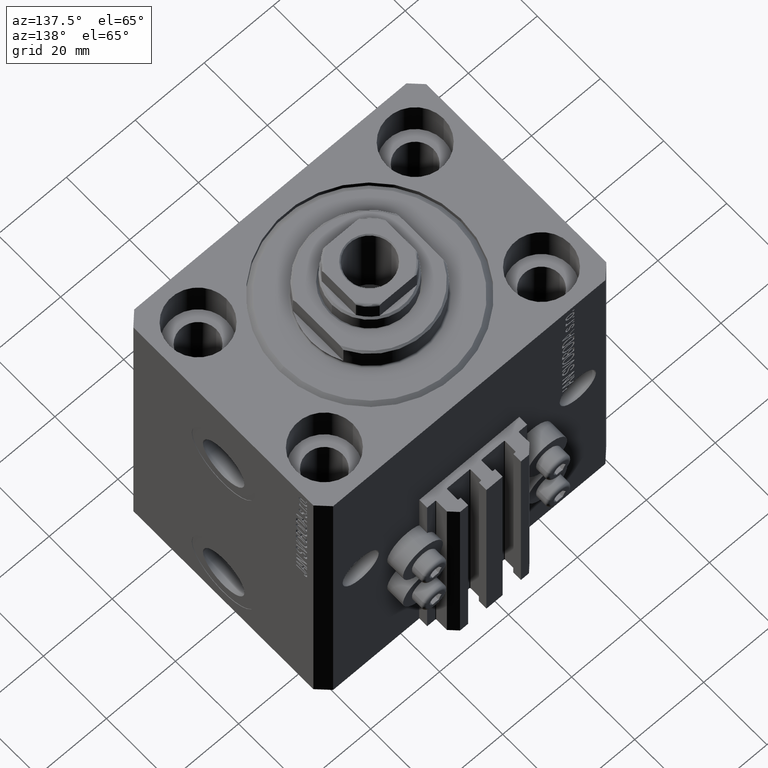
[diagram: clean part render]
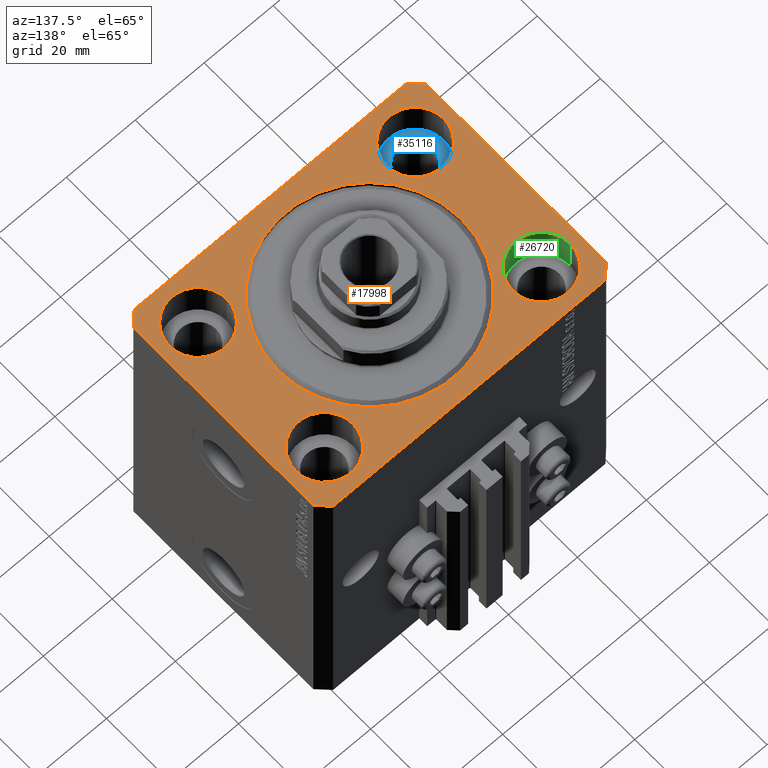
[diagram: same view with three faces highlighted in distinct colors, each labeled with its STEP entity id]
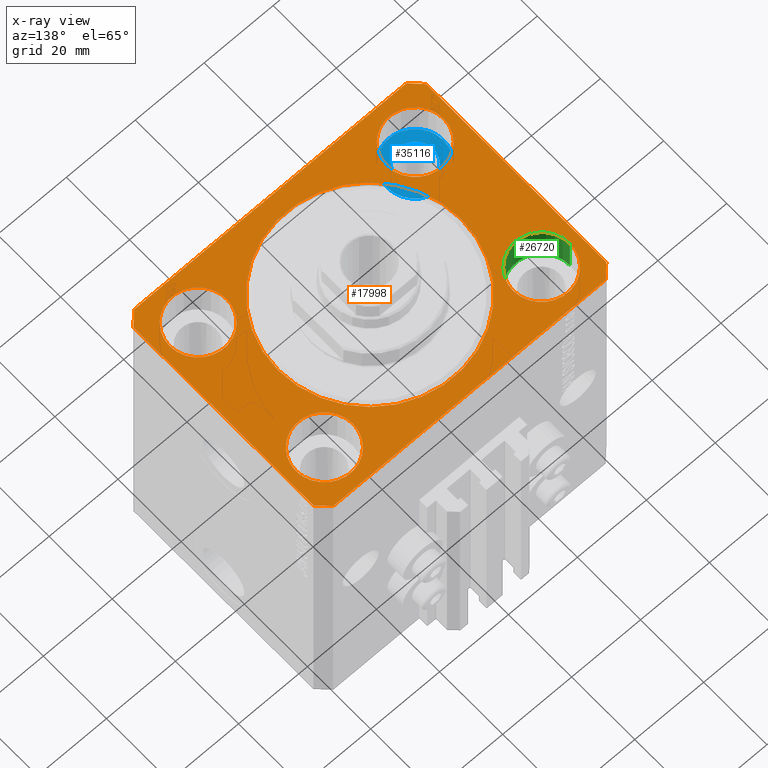
[diagram: x-ray of the same camera — body ghosted, the three highlighted faces saturated]
A machine part, auxiliary view with three faces highlighted in distinct colors.
The next image is the same camera in x-ray (body ghosted, the three faces saturated) — at least one of them is partly hidden behind the body in this view.
Their STEP definitions:

[orange] entity #17998 — the highlighted planar face has unit normal (0, 0, 1).
#71 = EDGE_LOOP ( 'NONE', ( #3615, #25077 ) ) ;
#1036 = CARTESIAN_POINT ( 'NONE',  ( 39.74999999999999289, 20.00000000000001066, 0.000000000000000000 ) ) ;
#1152 = DIRECTION ( 'NONE',  ( 0.7071067811865471286, -0.7071067811865479058, 0.000000000000000000 ) ) ;
#2162 = ORIENTED_EDGE ( 'NONE', *, *, #28083, .F. ) ;
#2213 = AXIS2_PLACEMENT_3D ( 'NONE', #3394, #10865, #2460 ) ;
#2460 = DIRECTION ( 'NONE',  ( 1.000000000000000000, 0.000000000000000000, -0.000000000000000000 ) ) ;
#2657 = EDGE_CURVE ( 'NONE', #37993, #47539, #29885, .T. ) ;
#2693 = PLANE ( 'NONE',  #2213 ) ;
#2750 = CARTESIAN_POINT ( 'NONE',  ( 42.50000000000051870, 28.49999999999995381, 0.000000000000000000 ) ) ;
#3394 = CARTESIAN_POINT ( 'NONE',  ( 0.000000000000000000, 0.000000000000000000, 0.000000000000000000 ) ) ;
#3615 = ORIENTED_EDGE ( 'NONE', *, *, #10823, .F. ) ;
#3819 = VECTOR ( 'NONE', #15895, 1000.000000000000000 ) ;
#4170 = CARTESIAN_POINT ( 'NONE',  ( 26.50000000000000355, 0.000000000000000000, 0.000000000000000000 ) ) ;
#4397 = DIRECTION ( 'NONE',  ( 1.000000000000000000, 0.000000000000000000, 0.000000000000000000 ) ) ;
#4406 = CARTESIAN_POINT ( 'NONE',  ( 39.50000000000000711, -31.50000000000000000, 0.000000000000000000 ) ) ;
#4743 = VERTEX_POINT ( 'NONE', #11642 ) ;
#4767 = CARTESIAN_POINT ( 'NONE',  ( -42.50000000000000000, -28.50000000000000000, 0.000000000000000000 ) ) ;
#4953 = VECTOR ( 'NONE', #20111, 1000.000000000000000 ) ;
#5040 = EDGE_CURVE ( 'NONE', #7225, #37993, #26706, .T. ) ;
#5342 = CARTESIAN_POINT ( 'NONE',  ( 31.50000000000000000, -20.00000000000000000, 0.000000000000000000 ) ) ;
#5403 = DIRECTION ( 'NONE',  ( -0.7071067811865356934, 0.7071067811865594521, 0.000000000000000000 ) ) ;
#5508 = VERTEX_POINT ( 'NONE', #19711 ) ;
#7225 = VERTEX_POINT ( 'NONE', #17126 ) ;
#7534 = CIRCLE ( 'NONE', #11389, 8.249999999999992895 ) ;
#7641 = DIRECTION ( 'NONE',  ( 8.886653596232072440E-15, 1.000000000000000000, 0.000000000000000000 ) ) ;
#7981 = DIRECTION ( 'NONE',  ( 0.7071067811865483499, 0.7071067811865466846, 0.000000000000000000 ) ) ;
#8777 = LINE ( 'NONE', #20579, #4953 ) ;
#9367 = AXIS2_PLACEMENT_3D ( 'NONE', #15741, #26835, #30460 ) ;
#9498 = LINE ( 'NONE', #2750, #47633 ) ;
#9767 = EDGE_LOOP ( 'NONE', ( #30646, #18051 ) ) ;
#10823 = EDGE_CURVE ( 'NONE', #25736, #22540, #30073, .T. ) ;
#10865 = DIRECTION ( 'NONE',  ( 0.000000000000000000, 0.000000000000000000, 1.000000000000000000 ) ) ;
#11010 = ORIENTED_EDGE ( 'NONE', *, *, #24276, .F. ) ;
#11389 = AXIS2_PLACEMENT_3D ( 'NONE', #17390, #40014, #39312 ) ;
#11642 = CARTESIAN_POINT ( 'NONE',  ( -39.50000000000000711, 31.50000000000000000, 0.000000000000000000 ) ) ;
#11834 = EDGE_LOOP ( 'NONE', ( #36673, #15592 ) ) ;
#11959 = ORIENTED_EDGE ( 'NONE', *, *, #28270, .T. ) ;
#13021 = DIRECTION ( 'NONE',  ( 1.000000000000000000, 0.000000000000000000, 0.000000000000000000 ) ) ;
#13126 = DIRECTION ( 'NONE',  ( -1.000000000000000000, 0.000000000000000000, 0.000000000000000000 ) ) ;
#13482 = EDGE_CURVE ( 'NONE', #46689, #4743, #24468, .T. ) ;
#13532 = DIRECTION ( 'NONE',  ( 0.000000000000000000, 0.000000000000000000, 1.000000000000000000 ) ) ;
#13585 = EDGE_LOOP ( 'NONE', ( #2162, #36400 ) ) ;
#13956 = ORIENTED_EDGE ( 'NONE', *, *, #18763, .F. ) ;
#14020 = FACE_BOUND ( 'NONE', #9767, .T. ) ;
#14954 = CARTESIAN_POINT ( 'NONE',  ( -39.50000000000000711, -31.50000000000000000, 0.000000000000000000 ) ) ;
#15350 = CIRCLE ( 'NONE', #24591, 8.250000000000000000 ) ;
#15412 = CIRCLE ( 'NONE', #25411, 8.249999999999992895 ) ;
#15455 = LINE ( 'NONE', #44569, #23250 ) ;
#15592 = ORIENTED_EDGE ( 'NONE', *, *, #20501, .F. ) ;
#15651 = EDGE_CURVE ( 'NONE', #40289, #28839, #7534, .T. ) ;
#15741 = CARTESIAN_POINT ( 'NONE',  ( 0.000000000000000000, 0.000000000000000000, 0.000000000000000000 ) ) ;
#15830 = CIRCLE ( 'NONE', #28160, 8.250000000000000000 ) ;
#15895 = DIRECTION ( 'NONE',  ( 1.000000000000000000, 0.000000000000000000, 0.000000000000000000 ) ) ;
#15967 = CARTESIAN_POINT ( 'NONE',  ( 23.25000000000000355, -20.00000000000000000, 0.000000000000000000 ) ) ;
#16135 = LINE ( 'NONE', #38299, #44479 ) ;
#16350 = CARTESIAN_POINT ( 'NONE',  ( -39.75000000000000000, -20.00000000000000000, 0.000000000000000000 ) ) ;
#16681 = EDGE_CURVE ( 'NONE', #17628, #7225, #16135, .T. ) ;
#17126 = CARTESIAN_POINT ( 'NONE',  ( -42.50000000000000000, -28.50000000000000000, 0.000000000000000000 ) ) ;
#17390 = CARTESIAN_POINT ( 'NONE',  ( 31.50000000000000000, -20.00000000000000000, 0.000000000000000000 ) ) ;
#17628 = VERTEX_POINT ( 'NONE', #36704 ) ;
#17998 = ADVANCED_FACE ( 'NONE', ( #14020, #32807, #43373, #40021, #28489, #21724 ), #2693, .T. ) ;
#18051 = ORIENTED_EDGE ( 'NONE', *, *, #19095, .F. ) ;
#18763 = EDGE_CURVE ( 'NONE', #41060, #47625, #33792, .T. ) ;
#19095 = EDGE_CURVE ( 'NONE', #42287, #5508, #15350, .T. ) ;
#19711 = CARTESIAN_POINT ( 'NONE',  ( -23.25000000000000000, -20.00000000000000000, 0.000000000000000000 ) ) ;
#19845 = DIRECTION ( 'NONE',  ( 1.000000000000000000, 0.000000000000000000, 0.000000000000000000 ) ) ;
#20111 = DIRECTION ( 'NONE',  ( -0.7071067811865471286, -0.7071067811865479058, 0.000000000000000000 ) ) ;
#20123 = EDGE_CURVE ( 'NONE', #39771, #46689, #9498, .T. ) ;
#20260 = CARTESIAN_POINT ( 'NONE',  ( 31.50000000000000000, 20.00000000000001066, 0.000000000000000000 ) ) ;
#20501 = EDGE_CURVE ( 'NONE', #28839, #40289, #15412, .T. ) ;
#20579 = CARTESIAN_POINT ( 'NONE',  ( -39.50000000000000711, 31.50000000000000000, 0.000000000000000000 ) ) ;
#21724 = FACE_OUTER_BOUND ( 'NONE', #45842, .T. ) ;
#22445 = CIRCLE ( 'NONE', #36306, 8.250000000000000000 ) ;
#22538 = CARTESIAN_POINT ( 'NONE',  ( 39.50000000000056843, 31.50000000000000000, 0.000000000000000000 ) ) ;
#22540 = VERTEX_POINT ( 'NONE', #45625 ) ;
#23250 = VECTOR ( 'NONE', #7981, 1000.000000000000000 ) ;
#23338 = CARTESIAN_POINT ( 'NONE',  ( -23.25000000000000000, 20.00000000000000000, 0.000000000000000000 ) ) ;
#23458 = DIRECTION ( 'NONE',  ( 0.000000000000000000, 0.000000000000000000, 1.000000000000000000 ) ) ;
#23464 = EDGE_CURVE ( 'NONE', #5508, #42287, #22445, .T. ) ;
#23904 = EDGE_CURVE ( 'NONE', #41430, #27032, #47032, .T. ) ;
#23960 = ORIENTED_EDGE ( 'NONE', *, *, #38988, .T. ) ;
#24276 = EDGE_CURVE ( 'NONE', #47625, #41060, #31707, .T. ) ;
#24468 = LINE ( 'NONE', #45391, #33632 ) ;
#24591 = AXIS2_PLACEMENT_3D ( 'NONE', #37366, #34241, #41206 ) ;
#25077 = ORIENTED_EDGE ( 'NONE', *, *, #45378, .F. ) ;
#25243 = DIRECTION ( 'NONE',  ( 0.000000000000000000, 0.000000000000000000, 1.000000000000000000 ) ) ;
#25411 = AXIS2_PLACEMENT_3D ( 'NONE', #5342, #13532, #38833 ) ;
#25736 = VERTEX_POINT ( 'NONE', #23338 ) ;
#25973 = CARTESIAN_POINT ( 'NONE',  ( 42.50000000000000711, -28.50000000000000355, 0.000000000000000000 ) ) ;
#26706 = LINE ( 'NONE', #4767, #29295 ) ;
#26785 = ORIENTED_EDGE ( 'NONE', *, *, #13482, .T. ) ;
#26835 = DIRECTION ( 'NONE',  ( 0.000000000000000000, 0.000000000000000000, 1.000000000000000000 ) ) ;
#27032 = VERTEX_POINT ( 'NONE', #4170 ) ;
#27752 = ORIENTED_EDGE ( 'NONE', *, *, #5040, .T. ) ;
#27857 = AXIS2_PLACEMENT_3D ( 'NONE', #45580, #38151, #19845 ) ;
#28000 = CARTESIAN_POINT ( 'NONE',  ( -31.50000000000000000, 20.00000000000000000, 0.000000000000000000 ) ) ;
#28083 = EDGE_CURVE ( 'NONE', #27032, #41430, #43959, .T. ) ;
#28160 = AXIS2_PLACEMENT_3D ( 'NONE', #40040, #33958, #33054 ) ;
#28237 = DIRECTION ( 'NONE',  ( 0.000000000000000000, 0.000000000000000000, 1.000000000000000000 ) ) ;
#28270 = EDGE_CURVE ( 'NONE', #47539, #40442, #15455, .T. ) ;
#28489 = FACE_BOUND ( 'NONE', #13585, .T. ) ;
#28839 = VERTEX_POINT ( 'NONE', #15967 ) ;
#29295 = VECTOR ( 'NONE', #1152, 1000.000000000000000 ) ;
#29885 = LINE ( 'NONE', #30134, #3819 ) ;
#30073 = CIRCLE ( 'NONE', #36223, 8.250000000000000000 ) ;
#30134 = CARTESIAN_POINT ( 'NONE',  ( -39.50000000000000711, -31.50000000000000000, 0.000000000000000000 ) ) ;
#30172 = ORIENTED_EDGE ( 'NONE', *, *, #2657, .T. ) ;
#30430 = CARTESIAN_POINT ( 'NONE',  ( 42.50000000000000711, -28.50000000000000355, 0.000000000000000000 ) ) ;
#30460 = DIRECTION ( 'NONE',  ( 1.000000000000000000, 0.000000000000000000, 0.000000000000000000 ) ) ;
#30646 = ORIENTED_EDGE ( 'NONE', *, *, #23464, .F. ) ;
#31090 = ORIENTED_EDGE ( 'NONE', *, *, #16681, .T. ) ;
#31707 = CIRCLE ( 'NONE', #46267, 8.249999999999992895 ) ;
#32294 = AXIS2_PLACEMENT_3D ( 'NONE', #41025, #23458, #4397 ) ;
#32324 = DIRECTION ( 'NONE',  ( 1.000000000000000000, 0.000000000000000000, 0.000000000000000000 ) ) ;
#32807 = FACE_BOUND ( 'NONE', #11834, .T. ) ;
#33054 = DIRECTION ( 'NONE',  ( 1.000000000000000000, 0.000000000000000000, 0.000000000000000000 ) ) ;
#33414 = VECTOR ( 'NONE', #7641, 1000.000000000000000 ) ;
#33632 = VECTOR ( 'NONE', #13126, 1000.000000000000000 ) ;
#33792 = CIRCLE ( 'NONE', #32294, 8.249999999999992895 ) ;
#33958 = DIRECTION ( 'NONE',  ( 0.000000000000000000, 0.000000000000000000, 1.000000000000000000 ) ) ;
#34241 = DIRECTION ( 'NONE',  ( 0.000000000000000000, 0.000000000000000000, 1.000000000000000000 ) ) ;
#34950 = DIRECTION ( 'NONE',  ( 0.000000000000000000, 0.000000000000000000, 1.000000000000000000 ) ) ;
#35383 = ORIENTED_EDGE ( 'NONE', *, *, #20123, .T. ) ;
#35756 = CARTESIAN_POINT ( 'NONE',  ( 23.25000000000000355, 20.00000000000001066, 0.000000000000000000 ) ) ;
#36223 = AXIS2_PLACEMENT_3D ( 'NONE', #28000, #28237, #32324 ) ;
#36306 = AXIS2_PLACEMENT_3D ( 'NONE', #43269, #25243, #47115 ) ;
#36400 = ORIENTED_EDGE ( 'NONE', *, *, #23904, .F. ) ;
#36462 = CARTESIAN_POINT ( 'NONE',  ( 39.74999999999999289, -20.00000000000000000, 0.000000000000000000 ) ) ;
#36673 = ORIENTED_EDGE ( 'NONE', *, *, #15651, .F. ) ;
#36704 = CARTESIAN_POINT ( 'NONE',  ( -42.50000000000000000, 28.50000000000000000, 0.000000000000000000 ) ) ;
#37366 = CARTESIAN_POINT ( 'NONE',  ( -31.50000000000000000, -20.00000000000000000, 0.000000000000000000 ) ) ;
#37496 = EDGE_LOOP ( 'NONE', ( #11010, #13956 ) ) ;
#37523 = ORIENTED_EDGE ( 'NONE', *, *, #39543, .T. ) ;
#37993 = VERTEX_POINT ( 'NONE', #14954 ) ;
#38151 = DIRECTION ( 'NONE',  ( 0.000000000000000000, 0.000000000000000000, 1.000000000000000000 ) ) ;
#38299 = CARTESIAN_POINT ( 'NONE',  ( -42.50000000000000000, 28.50000000000000000, 0.000000000000000000 ) ) ;
#38705 = CARTESIAN_POINT ( 'NONE',  ( 42.50000000000051870, 28.49999999999995381, 0.000000000000000000 ) ) ;
#38833 = DIRECTION ( 'NONE',  ( 1.000000000000000000, 0.000000000000000000, 0.000000000000000000 ) ) ;
#38988 = EDGE_CURVE ( 'NONE', #4743, #17628, #8777, .T. ) ;
#39312 = DIRECTION ( 'NONE',  ( 1.000000000000000000, 0.000000000000000000, 0.000000000000000000 ) ) ;
#39543 = EDGE_CURVE ( 'NONE', #40442, #39771, #43534, .T. ) ;
#39771 = VERTEX_POINT ( 'NONE', #38705 ) ;
#40014 = DIRECTION ( 'NONE',  ( 0.000000000000000000, 0.000000000000000000, 1.000000000000000000 ) ) ;
#40021 = FACE_BOUND ( 'NONE', #71, .T. ) ;
#40040 = CARTESIAN_POINT ( 'NONE',  ( -31.50000000000000000, 20.00000000000000000, 0.000000000000000000 ) ) ;
#40289 = VERTEX_POINT ( 'NONE', #36462 ) ;
#40442 = VERTEX_POINT ( 'NONE', #30430 ) ;
#41025 = CARTESIAN_POINT ( 'NONE',  ( 31.50000000000000000, 20.00000000000001066, 0.000000000000000000 ) ) ;
#41060 = VERTEX_POINT ( 'NONE', #35756 ) ;
#41206 = DIRECTION ( 'NONE',  ( 1.000000000000000000, 0.000000000000000000, 0.000000000000000000 ) ) ;
#41430 = VERTEX_POINT ( 'NONE', #42902 ) ;
#42287 = VERTEX_POINT ( 'NONE', #16350 ) ;
#42902 = CARTESIAN_POINT ( 'NONE',  ( -26.50000000000000355, 3.245314017740485765E-15, 0.000000000000000000 ) ) ;
#43269 = CARTESIAN_POINT ( 'NONE',  ( -31.50000000000000000, -20.00000000000000000, 0.000000000000000000 ) ) ;
#43373 = FACE_BOUND ( 'NONE', #37496, .T. ) ;
#43534 = LINE ( 'NONE', #25973, #33414 ) ;
#43959 = CIRCLE ( 'NONE', #27857, 26.50000000000000355 ) ;
#44362 = DIRECTION ( 'NONE',  ( 0.000000000000000000, -1.000000000000000000, 0.000000000000000000 ) ) ;
#44479 = VECTOR ( 'NONE', #44362, 1000.000000000000000 ) ;
#44569 = CARTESIAN_POINT ( 'NONE',  ( 39.50000000000000711, -31.50000000000000000, 0.000000000000000000 ) ) ;
#45378 = EDGE_CURVE ( 'NONE', #22540, #25736, #15830, .T. ) ;
#45391 = CARTESIAN_POINT ( 'NONE',  ( 39.50000000000056843, 31.50000000000000000, 0.000000000000000000 ) ) ;
#45580 = CARTESIAN_POINT ( 'NONE',  ( 0.000000000000000000, 0.000000000000000000, 0.000000000000000000 ) ) ;
#45625 = CARTESIAN_POINT ( 'NONE',  ( -39.75000000000000000, 20.00000000000000000, 0.000000000000000000 ) ) ;
#45842 = EDGE_LOOP ( 'NONE', ( #26785, #23960, #31090, #27752, #30172, #11959, #37523, #35383 ) ) ;
#46267 = AXIS2_PLACEMENT_3D ( 'NONE', #20260, #34950, #13021 ) ;
#46689 = VERTEX_POINT ( 'NONE', #22538 ) ;
#47032 = CIRCLE ( 'NONE', #9367, 26.50000000000000355 ) ;
#47115 = DIRECTION ( 'NONE',  ( 1.000000000000000000, 0.000000000000000000, 0.000000000000000000 ) ) ;
#47539 = VERTEX_POINT ( 'NONE', #4406 ) ;
#47625 = VERTEX_POINT ( 'NONE', #1036 ) ;
#47633 = VECTOR ( 'NONE', #5403, 1000.000000000000114 ) ;

[blue] entity #35116 — the highlighted planar face has unit normal (0, 0, 1).
#1280 = CARTESIAN_POINT ( 'NONE',  ( -31.50000000000000000, -20.00000000000000000, -11.00000000000000000 ) ) ;
#1905 = AXIS2_PLACEMENT_3D ( 'NONE', #32448, #29289, #46604 ) ;
#1970 = CIRCLE ( 'NONE', #35050, 5.250000000000000888 ) ;
#1975 = CARTESIAN_POINT ( 'NONE',  ( -31.50000000000000000, -20.00000000000000000, -11.00000000000000000 ) ) ;
#5006 = ORIENTED_EDGE ( 'NONE', *, *, #43043, .F. ) ;
#5117 = DIRECTION ( 'NONE',  ( 1.000000000000000000, 0.000000000000000000, 0.000000000000000000 ) ) ;
#5337 = DIRECTION ( 'NONE',  ( 1.000000000000000000, 0.000000000000000000, 0.000000000000000000 ) ) ;
#5356 = DIRECTION ( 'NONE',  ( 0.000000000000000000, 0.000000000000000000, 1.000000000000000000 ) ) ;
#6690 = DIRECTION ( 'NONE',  ( 1.000000000000000000, 0.000000000000000000, 0.000000000000000000 ) ) ;
#7562 = CARTESIAN_POINT ( 'NONE',  ( -39.75000000000000000, -20.00000000000000000, -11.00000000000000000 ) ) ;
#7783 = CARTESIAN_POINT ( 'NONE',  ( -36.75000000000000000, -20.00000000000000000, -11.00000000000000000 ) ) ;
#9191 = DIRECTION ( 'NONE',  ( 0.000000000000000000, 0.000000000000000000, 1.000000000000000000 ) ) ;
#9706 = EDGE_LOOP ( 'NONE', ( #5006, #26067 ) ) ;
#10088 = CIRCLE ( 'NONE', #36276, 8.250000000000000000 ) ;
#10813 = VERTEX_POINT ( 'NONE', #21234 ) ;
#13456 = CIRCLE ( 'NONE', #28837, 8.250000000000000000 ) ;
#13877 = FACE_BOUND ( 'NONE', #9706, .T. ) ;
#14268 = DIRECTION ( 'NONE',  ( 1.000000000000000000, 0.000000000000000000, 0.000000000000000000 ) ) ;
#17666 = VERTEX_POINT ( 'NONE', #7783 ) ;
#18484 = CARTESIAN_POINT ( 'NONE',  ( -31.50000000000000000, -20.00000000000000000, -11.00000000000000000 ) ) ;
#19249 = DIRECTION ( 'NONE',  ( 0.000000000000000000, 0.000000000000000000, 1.000000000000000000 ) ) ;
#21234 = CARTESIAN_POINT ( 'NONE',  ( -26.25000000000000000, -20.00000000000000000, -11.00000000000000000 ) ) ;
#22876 = CARTESIAN_POINT ( 'NONE',  ( -31.50000000000000000, -20.00000000000000000, -11.00000000000000000 ) ) ;
#23085 = EDGE_CURVE ( 'NONE', #27986, #36544, #10088, .T. ) ;
#24236 = CIRCLE ( 'NONE', #44950, 5.250000000000000888 ) ;
#24270 = CARTESIAN_POINT ( 'NONE',  ( -23.25000000000000000, -20.00000000000000000, -11.00000000000000000 ) ) ;
#25449 = PLANE ( 'NONE',  #1905 ) ;
#26067 = ORIENTED_EDGE ( 'NONE', *, *, #45355, .F. ) ;
#27986 = VERTEX_POINT ( 'NONE', #7562 ) ;
#28589 = FACE_OUTER_BOUND ( 'NONE', #44418, .T. ) ;
#28837 = AXIS2_PLACEMENT_3D ( 'NONE', #1975, #9191, #5337 ) ;
#29289 = DIRECTION ( 'NONE',  ( 0.000000000000000000, 0.000000000000000000, 1.000000000000000000 ) ) ;
#32448 = CARTESIAN_POINT ( 'NONE',  ( -31.50000000000000000, -20.00000000000000000, -11.00000000000000000 ) ) ;
#33191 = DIRECTION ( 'NONE',  ( 0.000000000000000000, 0.000000000000000000, 1.000000000000000000 ) ) ;
#35050 = AXIS2_PLACEMENT_3D ( 'NONE', #22876, #19249, #14268 ) ;
#35116 = ADVANCED_FACE ( 'NONE', ( #13877, #28589 ), #25449, .T. ) ;
#36276 = AXIS2_PLACEMENT_3D ( 'NONE', #1280, #5356, #5117 ) ;
#36544 = VERTEX_POINT ( 'NONE', #24270 ) ;
#37123 = ORIENTED_EDGE ( 'NONE', *, *, #23085, .T. ) ;
#37271 = ORIENTED_EDGE ( 'NONE', *, *, #40504, .T. ) ;
#40504 = EDGE_CURVE ( 'NONE', #36544, #27986, #13456, .T. ) ;
#43043 = EDGE_CURVE ( 'NONE', #10813, #17666, #24236, .T. ) ;
#44418 = EDGE_LOOP ( 'NONE', ( #37271, #37123 ) ) ;
#44950 = AXIS2_PLACEMENT_3D ( 'NONE', #18484, #33191, #6690 ) ;
#45355 = EDGE_CURVE ( 'NONE', #17666, #10813, #1970, .T. ) ;
#46604 = DIRECTION ( 'NONE',  ( 1.000000000000000000, 0.000000000000000000, -0.000000000000000000 ) ) ;

[green] entity #26720 — the highlighted cylindrical surface (partial cylindrical patch) has radius 8.25 mm, axis along (0, 0, 1).
#1562 = VERTEX_POINT ( 'NONE', #11174 ) ;
#4203 = EDGE_CURVE ( 'NONE', #1562, #22540, #16085, .T. ) ;
#5016 = AXIS2_PLACEMENT_3D ( 'NONE', #24295, #13193, #45460 ) ;
#11174 = CARTESIAN_POINT ( 'NONE',  ( -39.75000000000000000, 20.00000000000000000, -11.00000000000000000 ) ) ;
#12278 = DIRECTION ( 'NONE',  ( -0.000000000000000000, -0.000000000000000000, 1.000000000000000000 ) ) ;
#13193 = DIRECTION ( 'NONE',  ( 0.000000000000000000, 0.000000000000000000, 1.000000000000000000 ) ) ;
#13993 = CARTESIAN_POINT ( 'NONE',  ( -23.25000000000000000, 20.00000000000000000, -11.00000000000000000 ) ) ;
#14635 = VECTOR ( 'NONE', #46147, 1000.000000000000000 ) ;
#15209 = VECTOR ( 'NONE', #12278, 1000.000000000000000 ) ;
#15830 = CIRCLE ( 'NONE', #28160, 8.250000000000000000 ) ;
#15926 = EDGE_CURVE ( 'NONE', #25179, #25736, #19758, .T. ) ;
#16085 = LINE ( 'NONE', #31502, #14635 ) ;
#17282 = DIRECTION ( 'NONE',  ( -0.000000000000000000, -0.000000000000000000, 1.000000000000000000 ) ) ;
#18223 = FACE_OUTER_BOUND ( 'NONE', #44287, .T. ) ;
#19758 = LINE ( 'NONE', #30856, #15209 ) ;
#21957 = ORIENTED_EDGE ( 'NONE', *, *, #45378, .T. ) ;
#22540 = VERTEX_POINT ( 'NONE', #45625 ) ;
#23338 = CARTESIAN_POINT ( 'NONE',  ( -23.25000000000000000, 20.00000000000000000, 0.000000000000000000 ) ) ;
#24295 = CARTESIAN_POINT ( 'NONE',  ( -31.50000000000000000, 20.00000000000000000, -11.00000000000000000 ) ) ;
#25179 = VERTEX_POINT ( 'NONE', #13993 ) ;
#25736 = VERTEX_POINT ( 'NONE', #23338 ) ;
#26289 = AXIS2_PLACEMENT_3D ( 'NONE', #35829, #17282, #46634 ) ;
#26720 = ADVANCED_FACE ( 'NONE', ( #18223 ), #31996, .F. ) ;
#28160 = AXIS2_PLACEMENT_3D ( 'NONE', #40040, #33958, #33054 ) ;
#30856 = CARTESIAN_POINT ( 'NONE',  ( -23.25000000000000000, 20.00000000000000000, -11.00000000000000000 ) ) ;
#31193 = ORIENTED_EDGE ( 'NONE', *, *, #44533, .F. ) ;
#31502 = CARTESIAN_POINT ( 'NONE',  ( -39.75000000000000000, 20.00000000000000000, -11.00000000000000000 ) ) ;
#31996 = CYLINDRICAL_SURFACE ( 'NONE', #26289, 8.250000000000000000 ) ;
#33054 = DIRECTION ( 'NONE',  ( 1.000000000000000000, 0.000000000000000000, 0.000000000000000000 ) ) ;
#33366 = ORIENTED_EDGE ( 'NONE', *, *, #15926, .F. ) ;
#33479 = CIRCLE ( 'NONE', #5016, 8.250000000000000000 ) ;
#33958 = DIRECTION ( 'NONE',  ( 0.000000000000000000, 0.000000000000000000, 1.000000000000000000 ) ) ;
#35829 = CARTESIAN_POINT ( 'NONE',  ( -31.50000000000000000, 20.00000000000000000, -11.00000000000000000 ) ) ;
#40040 = CARTESIAN_POINT ( 'NONE',  ( -31.50000000000000000, 20.00000000000000000, 0.000000000000000000 ) ) ;
#44287 = EDGE_LOOP ( 'NONE', ( #31193, #46882, #21957, #33366 ) ) ;
#44533 = EDGE_CURVE ( 'NONE', #1562, #25179, #33479, .T. ) ;
#45378 = EDGE_CURVE ( 'NONE', #22540, #25736, #15830, .T. ) ;
#45460 = DIRECTION ( 'NONE',  ( 1.000000000000000000, 0.000000000000000000, 0.000000000000000000 ) ) ;
#45625 = CARTESIAN_POINT ( 'NONE',  ( -39.75000000000000000, 20.00000000000000000, 0.000000000000000000 ) ) ;
#46147 = DIRECTION ( 'NONE',  ( -0.000000000000000000, -0.000000000000000000, 1.000000000000000000 ) ) ;
#46634 = DIRECTION ( 'NONE',  ( 1.000000000000000000, 0.000000000000000000, 0.000000000000000000 ) ) ;
#46882 = ORIENTED_EDGE ( 'NONE', *, *, #4203, .T. ) ;